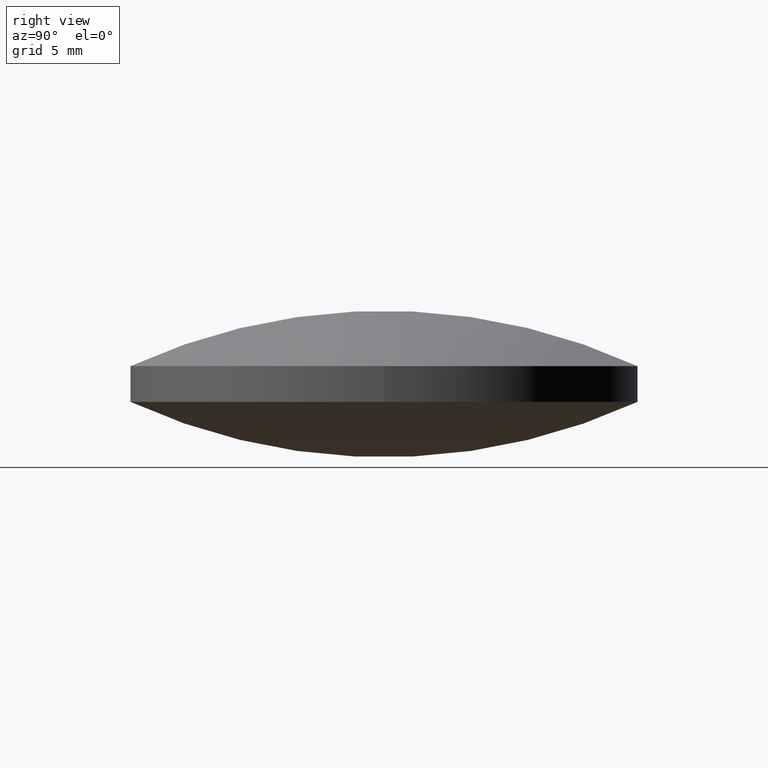
[diagram: clean part render]
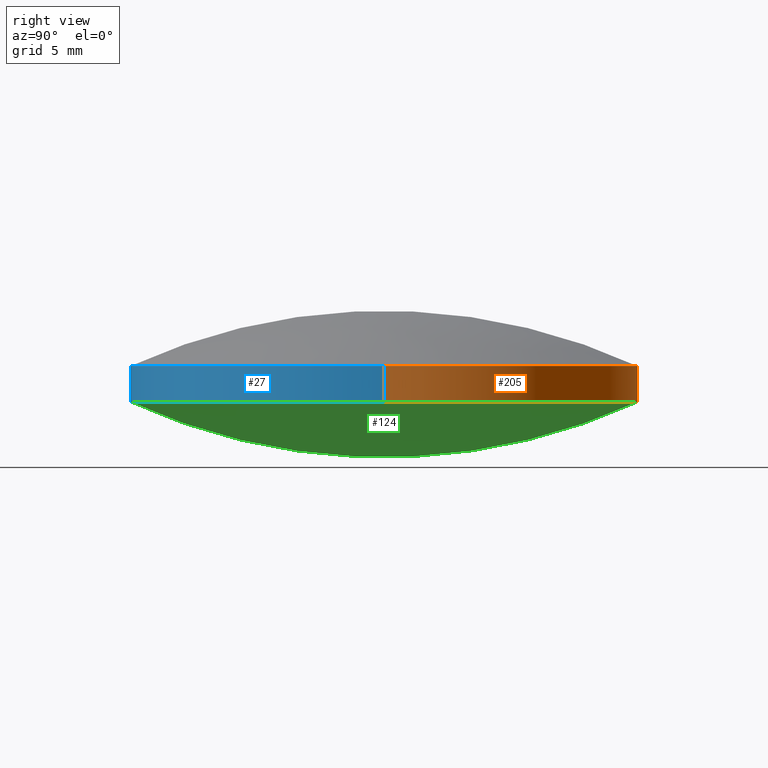
[diagram: same view with three faces highlighted in distinct colors, each labeled with its STEP entity id]
A machine part, right view with three faces highlighted in distinct colors.
Their STEP definitions:

[orange] entity #205 — the highlighted cylindrical surface (partial cylindrical patch) has radius 19.05 mm, axis along (0, 0, 1).
#1 = VERTEX_POINT ( 'NONE', #118 ) ;
#2 = DIRECTION ( 'NONE',  ( 1.000000000000000000, -8.881784197001252300E-016, 0.0000000000000000000 ) ) ;
#7 = EDGE_CURVE ( 'NONE', #292, #1, #197, .T. ) ;
#10 = AXIS2_PLACEMENT_3D ( 'NONE', #148, #28, #2 ) ;
#11 = CARTESIAN_POINT ( 'NONE',  ( -19.05000000000000400, 1.444773732675583000E-015, 4.153809354856820200 ) ) ;
#13 = AXIS2_PLACEMENT_3D ( 'NONE', #33, #55, #127 ) ;
#22 = VERTEX_POINT ( 'NONE', #145 ) ;
#28 = DIRECTION ( 'NONE',  ( -0.0000000000000000000, -0.0000000000000000000, -1.000000000000000000 ) ) ;
#29 = AXIS2_PLACEMENT_3D ( 'NONE', #159, #263, #39 ) ;
#30 = LINE ( 'NONE', #209, #213 ) ;
#33 = CARTESIAN_POINT ( 'NONE',  ( -4.662936703425659800E-015, -8.881784197001250400E-016, 6.846190645143179800 ) ) ;
#39 = DIRECTION ( 'NONE',  ( 1.000000000000000000, 8.881784197001252300E-016, 0.0000000000000000000 ) ) ;
#46 = EDGE_LOOP ( 'NONE', ( #63, #192, #230, #171, #123, #94 ) ) ;
#55 = DIRECTION ( 'NONE',  ( -0.0000000000000000000, -0.0000000000000000000, -1.000000000000000000 ) ) ;
#61 = CARTESIAN_POINT ( 'NONE',  ( -4.662936703425659800E-015, -8.881784197001250400E-016, 4.153809354856820200 ) ) ;
#62 = DIRECTION ( 'NONE',  ( 0.0000000000000000000, 0.0000000000000000000, 1.000000000000000000 ) ) ;
#63 = ORIENTED_EDGE ( 'NONE', *, *, #147, .F. ) ;
#72 = LINE ( 'NONE', #11, #259 ) ;
#79 = CARTESIAN_POINT ( 'NONE',  ( -19.05000000000000400, 1.444773732675583000E-015, 4.153809354856820200 ) ) ;
#81 = DIRECTION ( 'NONE',  ( 1.000000000000000000, -8.881784197001252300E-016, 0.0000000000000000000 ) ) ;
#94 = ORIENTED_EDGE ( 'NONE', *, *, #293, .F. ) ;
#114 = EDGE_CURVE ( 'NONE', #173, #292, #287, .T. ) ;
#118 = CARTESIAN_POINT ( 'NONE',  ( 19.04999999999999700, -8.881784197001250400E-016, 6.846190645143179800 ) ) ;
#123 = ORIENTED_EDGE ( 'NONE', *, *, #136, .F. ) ;
#127 = DIRECTION ( 'NONE',  ( 1.000000000000000000, 0.0000000000000000000, 0.0000000000000000000 ) ) ;
#136 = EDGE_CURVE ( 'NONE', #247, #1, #30, .T. ) ;
#145 = CARTESIAN_POINT ( 'NONE',  ( -1.690406712932035900E-014, 19.04999999999999400, 4.153809354856816700 ) ) ;
#147 = EDGE_CURVE ( 'NONE', #276, #22, #254, .T. ) ;
#148 = CARTESIAN_POINT ( 'NONE',  ( -4.662936703425659800E-015, -8.881784197001250400E-016, 6.846190645143179800 ) ) ;
#149 = FACE_OUTER_BOUND ( 'NONE', #46, .T. ) ;
#159 = CARTESIAN_POINT ( 'NONE',  ( -4.662936703425659800E-015, -8.881784197001250400E-016, 4.153809354856820200 ) ) ;
#164 = DIRECTION ( 'NONE',  ( 1.000000000000000000, 0.0000000000000000000, 0.0000000000000000000 ) ) ;
#167 = CIRCLE ( 'NONE', #177, 19.05000000000000100 ) ;
#171 = ORIENTED_EDGE ( 'NONE', *, *, #7, .T. ) ;
#172 = AXIS2_PLACEMENT_3D ( 'NONE', #245, #265, #164 ) ;
#173 = VERTEX_POINT ( 'NONE', #184 ) ;
#177 = AXIS2_PLACEMENT_3D ( 'NONE', #61, #225, #81 ) ;
#184 = CARTESIAN_POINT ( 'NONE',  ( -19.05000000000000400, 1.444773732675583000E-015, 6.846190645143179800 ) ) ;
#189 = CARTESIAN_POINT ( 'NONE',  ( 19.04999999999999700, -8.881784197001250400E-016, 4.153809354856820200 ) ) ;
#192 = ORIENTED_EDGE ( 'NONE', *, *, #288, .T. ) ;
#197 = CIRCLE ( 'NONE', #10, 19.05000000000000100 ) ;
#205 = ADVANCED_FACE ( 'NONE', ( #149 ), #218, .T. ) ;
#209 = CARTESIAN_POINT ( 'NONE',  ( 19.04999999999999700, -8.881784197001250400E-016, 4.153809354856820200 ) ) ;
#213 = VECTOR ( 'NONE', #267, 1000.000000000000000 ) ;
#218 = CYLINDRICAL_SURFACE ( 'NONE', #172, 19.05000000000000100 ) ;
#225 = DIRECTION ( 'NONE',  ( -0.0000000000000000000, -0.0000000000000000000, -1.000000000000000000 ) ) ;
#230 = ORIENTED_EDGE ( 'NONE', *, *, #114, .T. ) ;
#245 = CARTESIAN_POINT ( 'NONE',  ( -4.662936703425659800E-015, -8.881784197001250400E-016, 4.153809354856820200 ) ) ;
#247 = VERTEX_POINT ( 'NONE', #189 ) ;
#254 = CIRCLE ( 'NONE', #29, 19.05000000000000100 ) ;
#259 = VECTOR ( 'NONE', #62, 1000.000000000000000 ) ;
#263 = DIRECTION ( 'NONE',  ( -0.0000000000000000000, -0.0000000000000000000, -1.000000000000000000 ) ) ;
#265 = DIRECTION ( 'NONE',  ( 0.0000000000000000000, 0.0000000000000000000, 1.000000000000000000 ) ) ;
#267 = DIRECTION ( 'NONE',  ( 0.0000000000000000000, 0.0000000000000000000, 1.000000000000000000 ) ) ;
#276 = VERTEX_POINT ( 'NONE', #79 ) ;
#286 = CARTESIAN_POINT ( 'NONE',  ( 1.690406712932035900E-014, 19.05000000000000400, 6.846190645143182400 ) ) ;
#287 = CIRCLE ( 'NONE', #13, 19.05000000000000100 ) ;
#288 = EDGE_CURVE ( 'NONE', #276, #173, #72, .T. ) ;
#292 = VERTEX_POINT ( 'NONE', #286 ) ;
#293 = EDGE_CURVE ( 'NONE', #22, #247, #167, .T. ) ;

[blue] entity #27 — the highlighted cylindrical surface (partial cylindrical patch) has radius 19.05 mm, axis along (0, 0, 1).
#1 = VERTEX_POINT ( 'NONE', #118 ) ;
#4 = DIRECTION ( 'NONE',  ( -0.0000000000000000000, -0.0000000000000000000, -1.000000000000000000 ) ) ;
#6 = DIRECTION ( 'NONE',  ( -0.0000000000000000000, -0.0000000000000000000, -1.000000000000000000 ) ) ;
#9 = ORIENTED_EDGE ( 'NONE', *, *, #35, .T. ) ;
#11 = CARTESIAN_POINT ( 'NONE',  ( -19.05000000000000400, 1.444773732675583000E-015, 4.153809354856820200 ) ) ;
#12 = ORIENTED_EDGE ( 'NONE', *, *, #288, .F. ) ;
#20 = AXIS2_PLACEMENT_3D ( 'NONE', #215, #24, #251 ) ;
#24 = DIRECTION ( 'NONE',  ( 0.0000000000000000000, 0.0000000000000000000, 1.000000000000000000 ) ) ;
#26 = AXIS2_PLACEMENT_3D ( 'NONE', #146, #255, #121 ) ;
#27 = ADVANCED_FACE ( 'NONE', ( #295 ), #269, .T. ) ;
#30 = LINE ( 'NONE', #209, #213 ) ;
#35 = EDGE_CURVE ( 'NONE', #1, #219, #214, .T. ) ;
#36 = DIRECTION ( 'NONE',  ( 1.000000000000000000, 0.0000000000000000000, 0.0000000000000000000 ) ) ;
#43 = ORIENTED_EDGE ( 'NONE', *, *, #78, .T. ) ;
#49 = DIRECTION ( 'NONE',  ( 1.000000000000000000, 0.0000000000000000000, 0.0000000000000000000 ) ) ;
#62 = DIRECTION ( 'NONE',  ( 0.0000000000000000000, 0.0000000000000000000, 1.000000000000000000 ) ) ;
#64 = EDGE_CURVE ( 'NONE', #88, #276, #281, .T. ) ;
#70 = CIRCLE ( 'NONE', #258, 19.05000000000000100 ) ;
#72 = LINE ( 'NONE', #11, #259 ) ;
#78 = EDGE_CURVE ( 'NONE', #219, #173, #70, .T. ) ;
#79 = CARTESIAN_POINT ( 'NONE',  ( -19.05000000000000400, 1.444773732675583000E-015, 4.153809354856820200 ) ) ;
#83 = EDGE_CURVE ( 'NONE', #247, #88, #104, .T. ) ;
#88 = VERTEX_POINT ( 'NONE', #253 ) ;
#104 = CIRCLE ( 'NONE', #156, 19.05000000000000100 ) ;
#113 = ORIENTED_EDGE ( 'NONE', *, *, #83, .F. ) ;
#117 = CARTESIAN_POINT ( 'NONE',  ( -4.662936703425659800E-015, -8.881784197001250400E-016, 6.846190645143179800 ) ) ;
#118 = CARTESIAN_POINT ( 'NONE',  ( 19.04999999999999700, -8.881784197001250400E-016, 6.846190645143179800 ) ) ;
#121 = DIRECTION ( 'NONE',  ( 1.000000000000000000, 0.0000000000000000000, 0.0000000000000000000 ) ) ;
#131 = CARTESIAN_POINT ( 'NONE',  ( 1.690406712932035900E-014, -19.05000000000001100, 6.846190645143182400 ) ) ;
#136 = EDGE_CURVE ( 'NONE', #247, #1, #30, .T. ) ;
#146 = CARTESIAN_POINT ( 'NONE',  ( -4.662936703425659800E-015, -8.881784197001250400E-016, 4.153809354856820200 ) ) ;
#150 = DIRECTION ( 'NONE',  ( -0.0000000000000000000, -0.0000000000000000000, -1.000000000000000000 ) ) ;
#156 = AXIS2_PLACEMENT_3D ( 'NONE', #220, #6, #36 ) ;
#173 = VERTEX_POINT ( 'NONE', #184 ) ;
#184 = CARTESIAN_POINT ( 'NONE',  ( -19.05000000000000400, 1.444773732675583000E-015, 6.846190645143179800 ) ) ;
#189 = CARTESIAN_POINT ( 'NONE',  ( 19.04999999999999700, -8.881784197001250400E-016, 4.153809354856820200 ) ) ;
#194 = ORIENTED_EDGE ( 'NONE', *, *, #64, .F. ) ;
#196 = EDGE_LOOP ( 'NONE', ( #12, #194, #113, #250, #9, #43 ) ) ;
#209 = CARTESIAN_POINT ( 'NONE',  ( 19.04999999999999700, -8.881784197001250400E-016, 4.153809354856820200 ) ) ;
#213 = VECTOR ( 'NONE', #267, 1000.000000000000000 ) ;
#214 = CIRCLE ( 'NONE', #252, 19.05000000000000100 ) ;
#215 = CARTESIAN_POINT ( 'NONE',  ( -4.662936703425659800E-015, -8.881784197001250400E-016, 4.153809354856820200 ) ) ;
#219 = VERTEX_POINT ( 'NONE', #131 ) ;
#220 = CARTESIAN_POINT ( 'NONE',  ( -4.662936703425659800E-015, -8.881784197001250400E-016, 4.153809354856820200 ) ) ;
#233 = DIRECTION ( 'NONE',  ( 1.000000000000000000, 0.0000000000000000000, 0.0000000000000000000 ) ) ;
#247 = VERTEX_POINT ( 'NONE', #189 ) ;
#250 = ORIENTED_EDGE ( 'NONE', *, *, #136, .T. ) ;
#251 = DIRECTION ( 'NONE',  ( 1.000000000000000000, 0.0000000000000000000, 0.0000000000000000000 ) ) ;
#252 = AXIS2_PLACEMENT_3D ( 'NONE', #117, #4, #233 ) ;
#253 = CARTESIAN_POINT ( 'NONE',  ( -1.690406712932036500E-014, -19.05000000000000400, 4.153809354856819300 ) ) ;
#255 = DIRECTION ( 'NONE',  ( -0.0000000000000000000, -0.0000000000000000000, -1.000000000000000000 ) ) ;
#258 = AXIS2_PLACEMENT_3D ( 'NONE', #277, #150, #49 ) ;
#259 = VECTOR ( 'NONE', #62, 1000.000000000000000 ) ;
#267 = DIRECTION ( 'NONE',  ( 0.0000000000000000000, 0.0000000000000000000, 1.000000000000000000 ) ) ;
#269 = CYLINDRICAL_SURFACE ( 'NONE', #20, 19.05000000000000100 ) ;
#276 = VERTEX_POINT ( 'NONE', #79 ) ;
#277 = CARTESIAN_POINT ( 'NONE',  ( -4.662936703425659800E-015, -8.881784197001250400E-016, 6.846190645143179800 ) ) ;
#281 = CIRCLE ( 'NONE', #26, 19.05000000000000100 ) ;
#288 = EDGE_CURVE ( 'NONE', #276, #173, #72, .T. ) ;
#295 = FACE_OUTER_BOUND ( 'NONE', #196, .T. ) ;

[green] entity #124 — the highlighted face is a freeform B-spline surface patch.
#5 = CARTESIAN_POINT ( 'NONE',  ( 6.859724987162779900, -6.845478120576448300, -1.511125564110183700 ) ) ;
#6 = DIRECTION ( 'NONE',  ( -0.0000000000000000000, -0.0000000000000000000, -1.000000000000000000 ) ) ;
#17 = ORIENTED_EDGE ( 'NONE', *, *, #293, .T. ) ;
#22 = VERTEX_POINT ( 'NONE', #145 ) ;
#36 = DIRECTION ( 'NONE',  ( 1.000000000000000000, 0.0000000000000000000, 0.0000000000000000000 ) ) ;
#52 = ORIENTED_EDGE ( 'NONE', *, *, #244, .T. ) ;
#53 = CARTESIAN_POINT ( 'NONE',  ( 6.023337074847367100, -19.26412198409376200, 4.252516287036197400 ) ) ;
#61 = CARTESIAN_POINT ( 'NONE',  ( -4.662936703425659800E-015, -8.881784197001250400E-016, 4.153809354856820200 ) ) ;
#73 = CARTESIAN_POINT ( 'NONE',  ( 6.023337074847367100, 19.26412198409373400, 4.252516287036183200 ) ) ;
#76 = CARTESIAN_POINT ( 'NONE',  ( -1.872193478806382800E-014, 6.845478120576418100, -1.511125564110191900 ) ) ;
#81 = DIRECTION ( 'NONE',  ( 1.000000000000000000, -8.881784197001252300E-016, 0.0000000000000000000 ) ) ;
#83 = EDGE_CURVE ( 'NONE', #247, #88, #104, .T. ) ;
#88 = VERTEX_POINT ( 'NONE', #253 ) ;
#95 = CARTESIAN_POINT ( 'NONE',  ( 17.37683644862777000, 19.26412198409373700, 8.064950468004450800 ) ) ;
#104 = CIRCLE ( 'NONE', #156, 19.05000000000000100 ) ;
#124 = ADVANCED_FACE ( 'NONE', ( #154 ), #239, .T. ) ;
#128 = CARTESIAN_POINT ( 'NONE',  ( 19.78974739472196700, 6.845478120576419900, 2.830695205361553900 ) ) ;
#145 = CARTESIAN_POINT ( 'NONE',  ( -1.690406712932035900E-014, 19.04999999999999400, 4.153809354856816700 ) ) ;
#151 = CARTESIAN_POINT ( 'NONE',  ( 17.37683644862777000, -19.26412198409376200, 8.064950468004465000 ) ) ;
#154 = FACE_OUTER_BOUND ( 'NONE', #163, .T. ) ;
#155 = CARTESIAN_POINT ( 'NONE',  ( 13.56008348748277300, 6.845478120576419000, -0.04108377331125002300 ) ) ;
#156 = AXIS2_PLACEMENT_3D ( 'NONE', #220, #6, #36 ) ;
#160 = CARTESIAN_POINT ( 'NONE',  ( -3.552713678800500100E-015, -7.105427357601000300E-015, 45.76000000000000500 ) ) ;
#161 = AXIS2_PLACEMENT_3D ( 'NONE', #160, #210, #208 ) ;
#163 = EDGE_LOOP ( 'NONE', ( #234, #52, #17 ) ) ;
#167 = CIRCLE ( 'NONE', #177, 19.05000000000000100 ) ;
#176 = CARTESIAN_POINT ( 'NONE',  ( 13.56008348748276900, -6.845478120576447400, -0.04108377331123874700 ) ) ;
#177 = AXIS2_PLACEMENT_3D ( 'NONE', #61, #225, #81 ) ;
#179 = CARTESIAN_POINT ( 'NONE',  ( 19.78974739472196400, -6.845478120576448300, 2.830695205361565500 ) ) ;
#181 = CARTESIAN_POINT ( 'NONE',  ( -1.687239224827241200E-014, -19.26412198409376200, 4.252516287036198300 ) ) ;
#189 = CARTESIAN_POINT ( 'NONE',  ( 19.04999999999999700, -8.881784197001250400E-016, 4.153809354856820200 ) ) ;
#203 = CARTESIAN_POINT ( 'NONE',  ( -1.687239224827241200E-014, 19.26412198409373700, 4.252516287036184100 ) ) ;
#208 = DIRECTION ( 'NONE',  ( 0.0000000000000000000, -1.000000000000000000, 3.032733349609802100E-016 ) ) ;
#210 = DIRECTION ( 'NONE',  ( 1.000000000000000000, -1.018886140823510000E-031, -3.208982423888019900E-016 ) ) ;
#217 = CARTESIAN_POINT ( 'NONE',  ( 6.859724987162782600, 6.845478120576418100, -1.511125564110194200 ) ) ;
#220 = CARTESIAN_POINT ( 'NONE',  ( -4.662936703425659800E-015, -8.881784197001250400E-016, 4.153809354856820200 ) ) ;
#221 = CARTESIAN_POINT ( 'NONE',  ( -1.872193478806382500E-014, -6.845478120576450100, -1.511125564110181700 ) ) ;
#223 = CIRCLE ( 'NONE', #161, 45.76000000000000500 ) ;
#225 = DIRECTION ( 'NONE',  ( -0.0000000000000000000, -0.0000000000000000000, -1.000000000000000000 ) ) ;
#234 = ORIENTED_EDGE ( 'NONE', *, *, #83, .T. ) ;
#236 = CARTESIAN_POINT ( 'NONE',  ( 11.90673879215711400, 19.26412198409373400, 5.543319815845957300 ) ) ;
#239 =( BOUNDED_SURFACE ( )  B_SPLINE_SURFACE ( 3, 3, ( 
 ( #181, #53, #282, #151 ),
 ( #221, #5, #176, #179 ),
 ( #76, #217, #155, #128 ),
 ( #203, #73, #236, #95 ) ),
 .UNSPECIFIED., .F., .F., .T. ) 
 B_SPLINE_SURFACE_WITH_KNOTS ( ( 4, 4 ),
 ( 4, 4 ),
 ( 0.0000000000000000000, 1.000000000000000000 ),
 ( 0.0000000000000000000, 1.000000000000000000 ),
 .UNSPECIFIED. ) 
 GEOMETRIC_REPRESENTATION_ITEM ( )  RATIONAL_B_SPLINE_SURFACE ( (
 ( 1.000000000000000000, 0.9845118682220205300, 0.9845118682220205300, 1.000000000000000000),
 ( 0.9380460913893329300, 0.9235175099120763700, 0.9235175099120763700, 0.9380460913893329300),
 ( 0.9380460913893329300, 0.9235175099120763700, 0.9235175099120763700, 0.9380460913893329300),
 ( 1.000000000000000000, 0.9845118682220205300, 0.9845118682220205300, 1.000000000000000000) ) ) 
 REPRESENTATION_ITEM ( '' )  SURFACE ( )  );
#244 = EDGE_CURVE ( 'NONE', #88, #22, #223, .T. ) ;
#247 = VERTEX_POINT ( 'NONE', #189 ) ;
#253 = CARTESIAN_POINT ( 'NONE',  ( -1.690406712932036500E-014, -19.05000000000000400, 4.153809354856819300 ) ) ;
#282 = CARTESIAN_POINT ( 'NONE',  ( 11.90673879215711400, -19.26412198409376200, 5.543319815845970700 ) ) ;
#293 = EDGE_CURVE ( 'NONE', #22, #247, #167, .T. ) ;